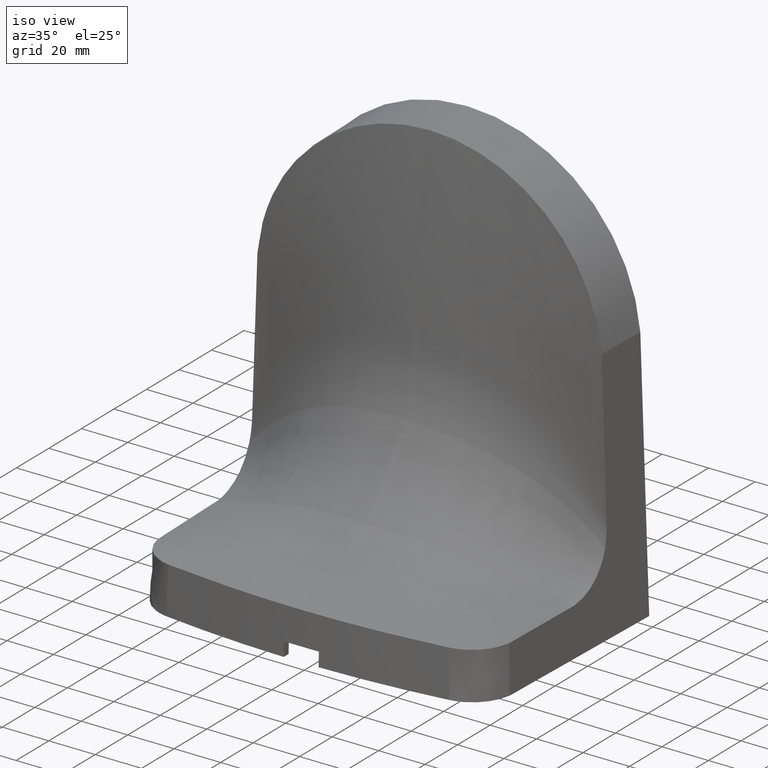
[diagram: clean part render]
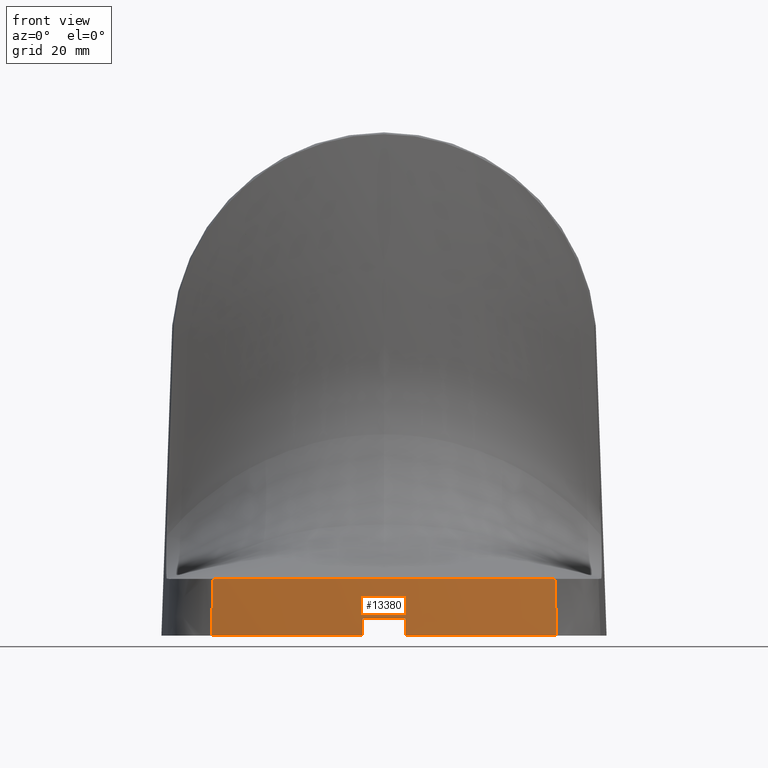
[diagram: tour spotlight — one face highlighted and labeled with its STEP entity id]
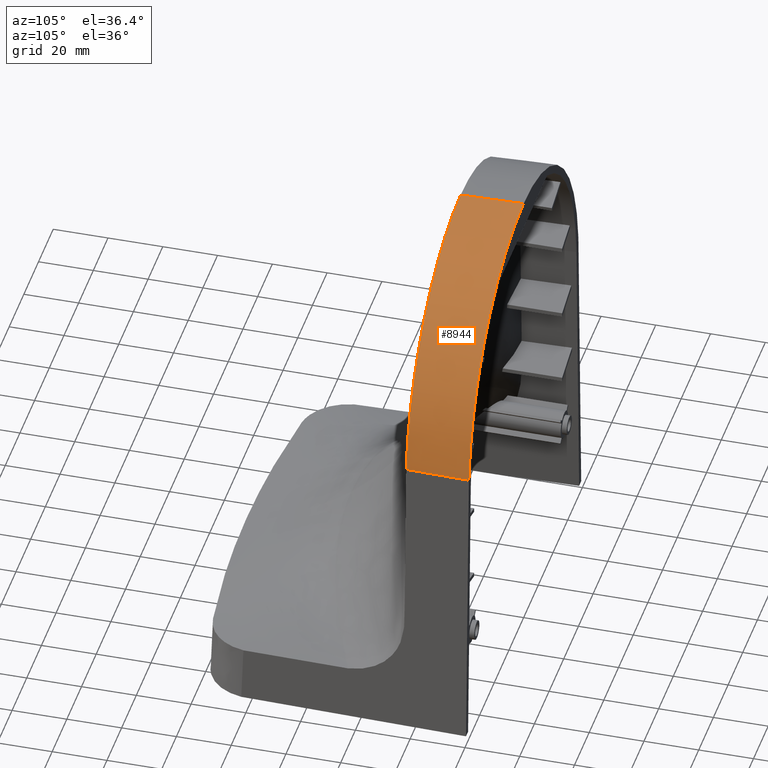
[diagram: tour spotlight — one face highlighted and labeled with its STEP entity id]
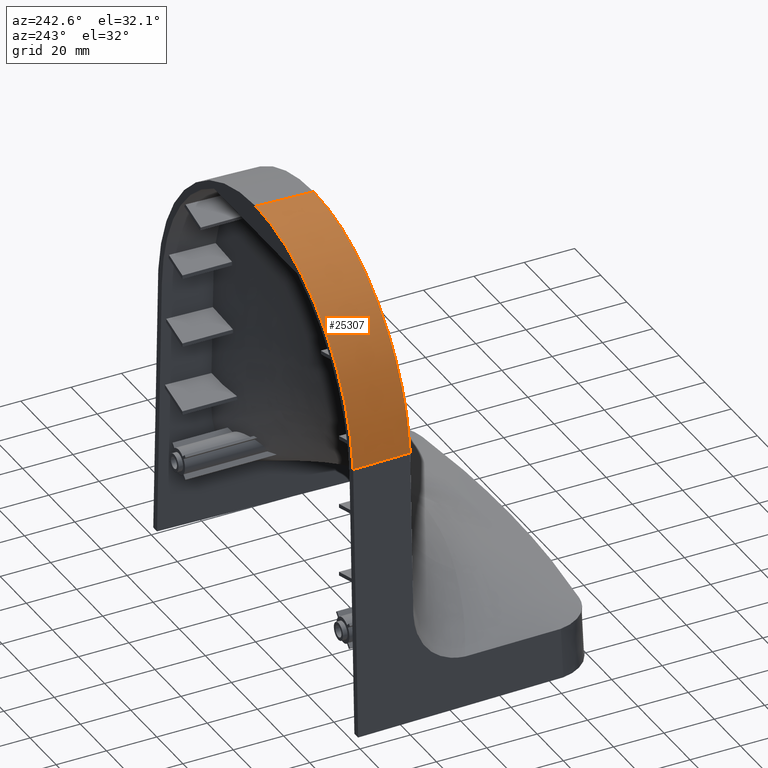
[diagram: tour spotlight — one face highlighted and labeled with its STEP entity id]
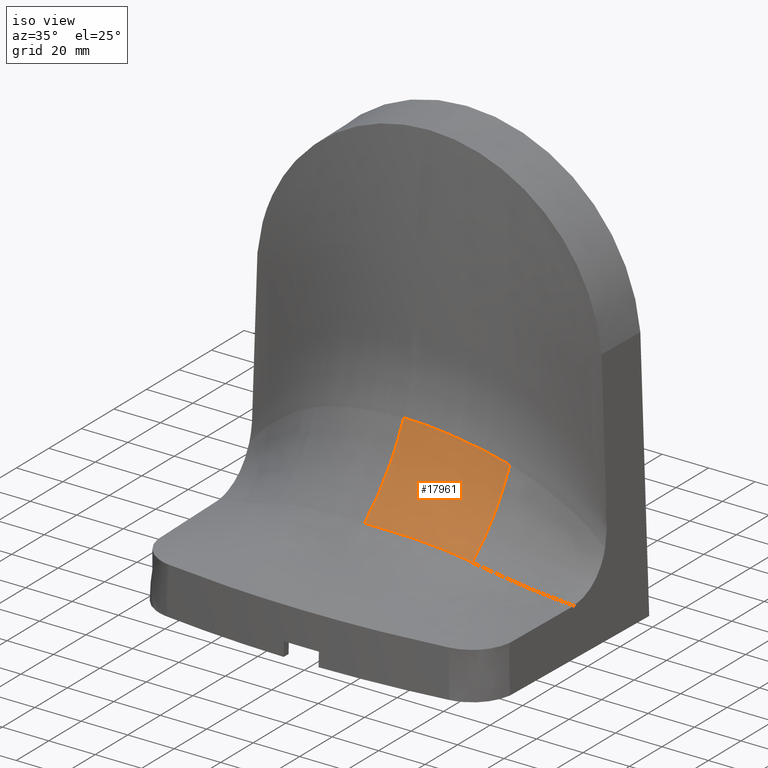
[diagram: tour spotlight — one face highlighted and labeled with its STEP entity id]
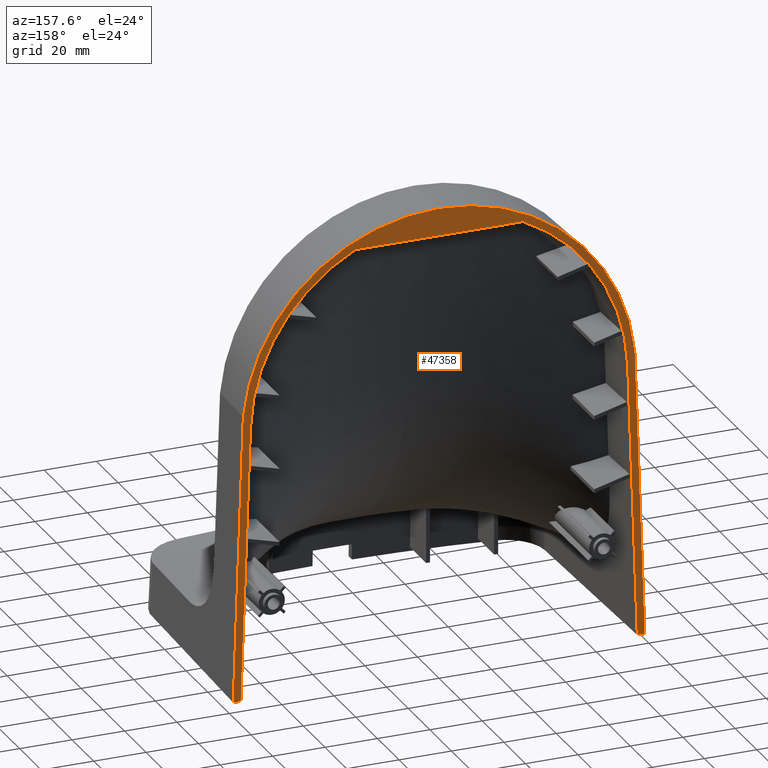
[diagram: tour spotlight — one face highlighted and labeled with its STEP entity id]
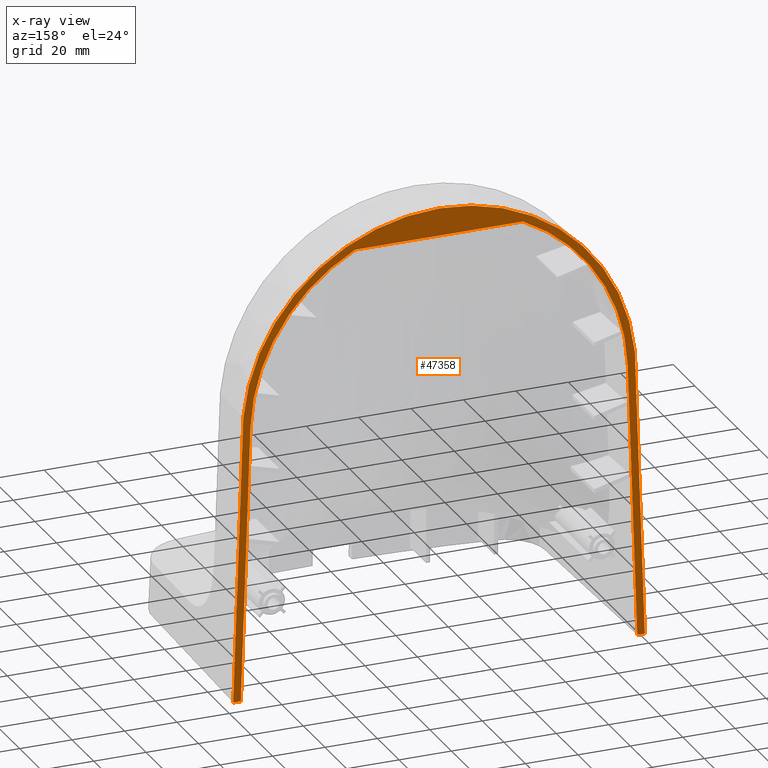
[diagram: x-ray of the same camera — body ghosted, this tour face saturated]
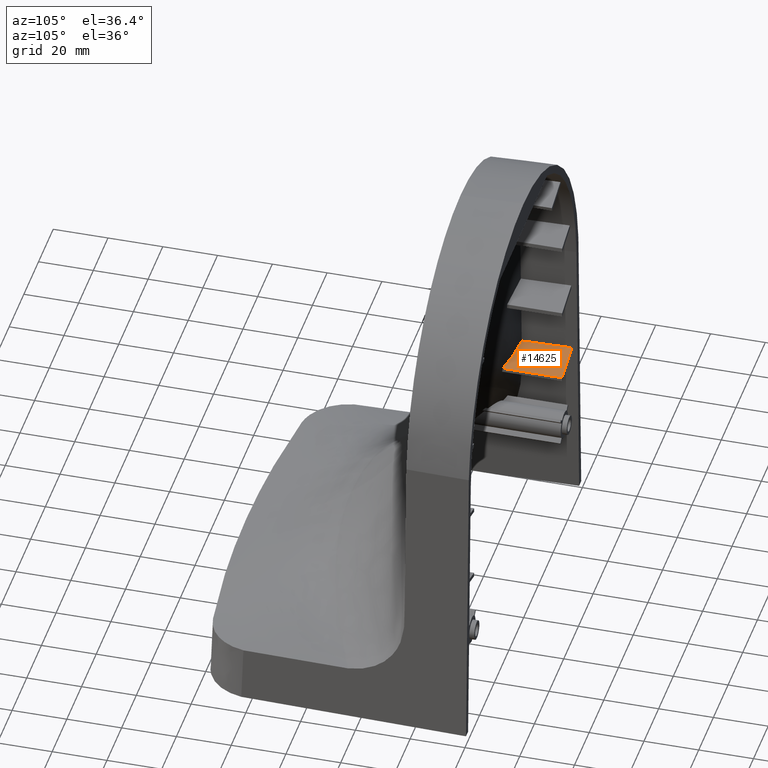
[diagram: tour spotlight — one face highlighted and labeled with its STEP entity id]
A machine part: a face-by-face anatomy tour. The part has 142 B-rep faces; the first image is the clean iso view, then the 6 largest visible faces are spotlighted one at a time (largest first), each with its STEP entity span.

Face 1 — front view, entity #13380. In plain terms, the highlighted conical surface has half-angle 2 deg.
Definition (entity closure, byte-faithful):
#221 = LINE ( 'NONE', #47440, #43218 ) ;
#403 = CARTESIAN_POINT ( 'NONE',  ( -60.95995261678829991, -97.87038769822579809, 0.000000000000000000 ) ) ;
#2825 = CARTESIAN_POINT ( 'NONE',  ( 60.25329385149890271, -97.26422360588341576, 19.99997466358019693 ) ) ;
#2958 = ORIENTED_EDGE ( 'NONE', *, *, #31203, .F. ) ;
#3682 = VERTEX_POINT ( 'NONE', #403 ) ;
#3900 = CARTESIAN_POINT ( 'NONE',  ( -19.72468415388675211, -100.9837160237571112, 20.00073828252684294 ) ) ;
#4009 = CARTESIAN_POINT ( 'NONE',  ( 20.14445170889858971, -101.3015846101651505, 20.00000000000000000 ) ) ;
#4072 = ORIENTED_EDGE ( 'NONE', *, *, #11642, .T. ) ;
#4708 = B_SPLINE_CURVE_WITH_KNOTS ( 'NONE', 3,
 ( #42739, #32878, #4009, #50126 ),
 .UNSPECIFIED., .F., .F.,
 ( 4, 4 ),
 ( 0.000000000000000000, 1.000000000000000000 ),
 .UNSPECIFIED. ) ;
#5835 = CARTESIAN_POINT ( 'NONE',  ( -60.25329385149890271, -97.26422360588341576, 19.99997466358019693 ) ) ;
#6856 = CARTESIAN_POINT ( 'NONE',  ( -7.500000000000000000, -101.7282187851913875, 6.000000000000000000 ) ) ;
#7390 = CARTESIAN_POINT ( 'NONE',  ( 60.95995261678829991, -97.87038769822579809, 0.000000000000000000 ) ) ;
#7703 = EDGE_LOOP ( 'NONE', ( #15852, #4072, #41795, #10500, #30736, #21625, #2958, #9623, #13707 ) ) ;
#8958 = EDGE_CURVE ( 'NONE', #22463, #28138, #14000, .T. ) ;
#9621 = DIRECTION ( 'NONE',  ( 1.000000000000000000, 0.000000000000000000, -7.295360978031786523E-17 ) ) ;
#9623 = ORIENTED_EDGE ( 'NONE', *, *, #53447, .F. ) ;
#9903 = VERTEX_POINT ( 'NONE', #52106 ) ;
#10340 = CARTESIAN_POINT ( 'NONE',  ( -7.500000000000000000, -101.9377722651649947, 0.000000000000000000 ) ) ;
#10500 = ORIENTED_EDGE ( 'NONE', *, *, #34557, .T. ) ;
#10701 = CONICAL_SURFACE ( 'NONE', #48636, 452.0000000000000000, 0.03490658503988566114 ) ;
#11193 = CARTESIAN_POINT ( 'NONE',  ( -60.72428089086646708, -97.66751476531206322, 6.666628508654348195 ) ) ;
#11330 = CARTESIAN_POINT ( 'NONE',  ( 60.72397334789777545, -97.66755676905982853, 6.666624421713695625 ) ) ;
#11416 = B_SPLINE_CURVE_WITH_KNOTS ( 'NONE', 3,
 ( #50878, #11330, #15577, #2825 ),
 .UNSPECIFIED., .F., .F.,
 ( 4, 4 ),
 ( 0.000000000000000000, 1.000000000000000000 ),
 .UNSPECIFIED. ) ;
#11435 = EDGE_CURVE ( 'NONE', #14084, #41963, #54540, .T. ) ;
#11642 = EDGE_CURVE ( 'NONE', #37328, #27619, #221, .T. ) ;
#12118 = CARTESIAN_POINT ( 'NONE',  ( -39.74533594350766208, -99.58047647630849042, 20.00126220372476027 ) ) ;
#12624 = DIRECTION ( 'NONE',  ( 1.000000000000000000, 0.000000000000000000, 0.000000000000000000 ) ) ;
#13248 = CARTESIAN_POINT ( 'NONE',  ( -55.04816981977593571, -97.96410930859322264, 20.00124811105575873 ) ) ;
#13380 = ADVANCED_FACE ( 'NONE', ( #25027 ), #10701, .T. ) ;
#13707 = ORIENTED_EDGE ( 'NONE', *, *, #8958, .F. ) ;
#14000 = LINE ( 'NONE', #35750, #19739 ) ;
#14081 = CARTESIAN_POINT ( 'NONE',  ( 7.500000000000000000, -101.7282187851913875, 6.000000000000000000 ) ) ;
#14084 = VERTEX_POINT ( 'NONE', #48157 ) ;
#14556 = DIRECTION ( 'NONE',  ( 0.000000000000000000, -0.03490430064655578729, -0.9993906592501126118 ) ) ;
#15577 = CARTESIAN_POINT ( 'NONE',  ( 60.48829111055109564, -97.46454263816777086, 13.33324884342739658 ) ) ;
#15852 = ORIENTED_EDGE ( 'NONE', *, *, #35572, .T. ) ;
#16292 = DIRECTION ( 'NONE',  ( 1.000000000000000000, 0.000000000000000000, 0.000000000000000000 ) ) ;
#16637 = CARTESIAN_POINT ( 'NONE',  ( -9.863317608593179742, -101.3019111910422367, 20.00033859842973172 ) ) ;
#18791 = CIRCLE ( 'NONE', #28698, 451.7904753830500226 ) ;
#19739 = VECTOR ( 'NONE', #14556, 1000.000000000000227 ) ;
#21625 = ORIENTED_EDGE ( 'NONE', *, *, #11435, .F. ) ;
#22463 = VERTEX_POINT ( 'NONE', #6856 ) ;
#25027 = FACE_OUTER_BOUND ( 'NONE', #7703, .T. ) ;
#25491 = VERTEX_POINT ( 'NONE', #7390 ) ;
#25943 = DIRECTION ( 'NONE',  ( 0.000000000000000000, -0.03490430064655578729, -0.9993906592501126118 ) ) ;
#26157 = CARTESIAN_POINT ( 'NONE',  ( 9.711198858952661196E-13, 350.0000000000000000, 0.000000000000000000 ) ) ;
#26625 =( BOUNDED_CURVE ( )  B_SPLINE_CURVE ( 3, ( #49920, #11193, #36080, #5835 ),
 .UNSPECIFIED., .F., .F. ) 
 B_SPLINE_CURVE_WITH_KNOTS ( ( 4, 4 ),
 ( 0.000000000000000000, 1.000000000000000000 ),
 .UNSPECIFIED. ) 
 CURVE ( )  GEOMETRIC_REPRESENTATION_ITEM ( )  RATIONAL_B_SPLINE_CURVE ( ( 0.9999999927008830225, 0.9999999926963566432, 0.9999999926918218263, 0.9999999926872785716 ) ) 
 REPRESENTATION_ITEM ( '' )  );
#27415 = EDGE_CURVE ( 'NONE', #27619, #25491, #30447, .T. ) ;
#27619 = VERTEX_POINT ( 'NONE', #38338 ) ;
#28138 = VERTEX_POINT ( 'NONE', #10340 ) ;
#28612 = CIRCLE ( 'NONE', #53007, 452.0000000000000000 ) ;
#28698 = AXIS2_PLACEMENT_3D ( 'NONE', #40413, #48907, #9621 ) ;
#29000 = DIRECTION ( 'NONE',  ( 0.000000000000000000, 0.000000000000000000, -1.000000000000000000 ) ) ;
#30447 = CIRCLE ( 'NONE', #50341, 452.0000000000000000 ) ;
#30736 = ORIENTED_EDGE ( 'NONE', *, *, #34127, .T. ) ;
#31203 = EDGE_CURVE ( 'NONE', #3682, #14084, #26625, .T. ) ;
#32878 = CARTESIAN_POINT ( 'NONE',  ( 40.28879555473863405, -99.95081082163490294, 20.00000000000000000 ) ) ;
#33811 = CARTESIAN_POINT ( 'NONE',  ( -9.711198858952661196E-13, 350.0000000000000000, 0.000000000000000000 ) ) ;
#34127 = EDGE_CURVE ( 'NONE', #9903, #41963, #4708, .T. ) ;
#34557 = EDGE_CURVE ( 'NONE', #25491, #9903, #11416, .T. ) ;
#34954 = DIRECTION ( 'NONE',  ( 0.000000000000000000, 0.000000000000000000, 1.000000000000000000 ) ) ;
#35572 = EDGE_CURVE ( 'NONE', #22463, #37328, #18791, .T. ) ;
#35750 = CARTESIAN_POINT ( 'NONE',  ( -7.500000000000000000, -101.8329955285204420, 3.000000000116731069 ) ) ;
#36080 = CARTESIAN_POINT ( 'NONE',  ( -60.48859961017011244, -97.46450093020644090, 13.33325301590960166 ) ) ;
#37328 = VERTEX_POINT ( 'NONE', #14081 ) ;
#38338 = CARTESIAN_POINT ( 'NONE',  ( 7.500000000000000000, -101.9377722651649947, 0.000000000000000000 ) ) ;
#40413 = CARTESIAN_POINT ( 'NONE',  ( 9.722602404197200421E-13, 350.0000000000000000, 6.000000000000000000 ) ) ;
#41795 = ORIENTED_EDGE ( 'NONE', *, *, #27415, .T. ) ;
#41963 = VERTEX_POINT ( 'NONE', #50816 ) ;
#42282 = DIRECTION ( 'NONE',  ( 0.000000000000000000, 0.000000000000000000, -1.000000000000000000 ) ) ;
#42739 = CARTESIAN_POINT ( 'NONE',  ( 60.25329385149890271, -97.26422360588341576, 19.99997466358019693 ) ) ;
#43218 = VECTOR ( 'NONE', #25943, 1000.000000000000227 ) ;
#47155 = CARTESIAN_POINT ( 'NONE',  ( -34.71480976205300806, -99.99548790362528905, 20.00116971636567342 ) ) ;
#47375 = DIRECTION ( 'NONE',  ( -1.000000000000000000, 0.000000000000000000, 0.000000000000000000 ) ) ;
#47385 = CARTESIAN_POINT ( 'NONE',  ( 9.711198858952661196E-13, 350.0000000000000000, 0.000000000000000000 ) ) ;
#47440 = CARTESIAN_POINT ( 'NONE',  ( 7.500000000000000000, -101.8329955285204420, 3.000000000116731069 ) ) ;
#48157 = CARTESIAN_POINT ( 'NONE',  ( -60.25329385149890271, -97.26422360588341576, 19.99997466358019693 ) ) ;
#48636 = AXIS2_PLACEMENT_3D ( 'NONE', #26157, #42282, #16292 ) ;
#48907 = DIRECTION ( 'NONE',  ( 7.295360978031788988E-17, 0.000000000000000000, 1.000000000000000000 ) ) ;
#49920 = CARTESIAN_POINT ( 'NONE',  ( -60.95995261678829991, -97.87038769822579809, 0.000000000000000000 ) ) ;
#50126 = CARTESIAN_POINT ( 'NONE',  ( 0.000000000000000000, -101.3015846101649942, 19.99999999999954881 ) ) ;
#50341 = AXIS2_PLACEMENT_3D ( 'NONE', #47385, #34954, #12624 ) ;
#50816 = CARTESIAN_POINT ( 'NONE',  ( 0.000000000000000000, -101.3015846101649942, 19.99999999999954881 ) ) ;
#50878 = CARTESIAN_POINT ( 'NONE',  ( 60.95995261678829991, -97.87038769822579809, 0.000000000000000000 ) ) ;
#51407 = CARTESIAN_POINT ( 'NONE',  ( 0.000000000000000000, -101.3015846101649942, 19.99999999999954881 ) ) ;
#51688 = CARTESIAN_POINT ( 'NONE',  ( -49.91176401791380357, -98.56473986795751330, 20.00131071822856299 ) ) ;
#52106 = CARTESIAN_POINT ( 'NONE',  ( 60.25329385149890271, -97.26422360588341576, 19.99997466358019693 ) ) ;
#53007 = AXIS2_PLACEMENT_3D ( 'NONE', #33811, #29000, #47375 ) ;
#53221 = CARTESIAN_POINT ( 'NONE',  ( -60.25329385149890271, -97.26422360588341576, 19.99997466358019693 ) ) ;
#53447 = EDGE_CURVE ( 'NONE', #28138, #3682, #28612, .T. ) ;
#54540 = B_SPLINE_CURVE_WITH_KNOTS ( 'NONE', 3,
 ( #53221, #13248, #51688, #12118, #47155, #3900, #16637, #51407 ),
 .UNSPECIFIED., .F., .F.,
 ( 4, 2, 2, 4 ),
 ( 0.000000000000000000, 0.2500000000000001110, 0.5000000000000002220, 1.000000000000000000 ),
 .UNSPECIFIED. ) ;

Face 2 — auxiliary view, entity #8944. In plain terms, the highlighted conical surface has half-angle 1.5 deg.
Definition (entity closure, byte-faithful):
#373 = CARTESIAN_POINT ( 'NONE',  ( 43.23575321819595985, -23.00048361347755943, 163.1070725932615062 ) ) ;
#2134 = ORIENTED_EDGE ( 'NONE', *, *, #39725, .F. ) ;
#3484 = CARTESIAN_POINT ( 'NONE',  ( 71.32565619558168635, -23.00244189793587779, 123.9843645089801640 ) ) ;
#4257 = EDGE_CURVE ( 'NONE', #11759, #13981, #47794, .T. ) ;
#4309 = CARTESIAN_POINT ( 'NONE',  ( 23.86902024210680651, -23.00000000002642508, 172.9990663925199499 ) ) ;
#4808 = EDGE_CURVE ( 'NONE', #29882, #11759, #33360, .T. ) ;
#5502 = CARTESIAN_POINT ( 'NONE',  ( 74.47597193861523124, -7.666515893177463070, 109.4467044357807453 ) ) ;
#6018 = CARTESIAN_POINT ( 'NONE',  ( 47.58255545770396822, -23.00032412130770609, 159.7577387103325464 ) ) ;
#7915 = CARTESIAN_POINT ( 'NONE',  ( 1.387778780781445991E-14, 0.000000000000000000, 102.5000000000000000 ) ) ;
#8295 = CARTESIAN_POINT ( 'NONE',  ( 74.07528795069339367, -22.99954979039394942, 109.4208379550731962 ) ) ;
#8944 = ADVANCED_FACE ( 'NONE', ( #39719 ), #42274, .T. ) ;
#9313 = CARTESIAN_POINT ( 'NONE',  ( 1.387778780781445991E-14, 0.000000000000000000, 177.5000000000000000 ) ) ;
#11759 = VERTEX_POINT ( 'NONE', #39245 ) ;
#12261 = CARTESIAN_POINT ( 'NONE',  ( 65.63713245175389943, -23.00072505218619767, 137.7213820642276119 ) ) ;
#12589 = VERTEX_POINT ( 'NONE', #38114 ) ;
#12812 = CARTESIAN_POINT ( 'NONE',  ( 4.065803764812553567, -23.00000000003306866, 176.8224857898312905 ) ) ;
#13317 = VERTEX_POINT ( 'NONE', #25312 ) ;
#13542 = AXIS2_PLACEMENT_3D ( 'NONE', #7915, #16406, #38440 ) ;
#13726 = DIRECTION ( 'NONE',  ( 0.000000000000000000, 0.000000000000000000, 1.000000000000000000 ) ) ;
#13981 = VERTEX_POINT ( 'NONE', #47875 ) ;
#14516 = CARTESIAN_POINT ( 'NONE',  ( 49.65723019723104414, -23.00003359052855956, 157.9681210772299949 ) ) ;
#16212 = CARTESIAN_POINT ( 'NONE',  ( 12.13200512705541279, -23.00000000003150546, 175.9327633256657748 ) ) ;
#16406 = DIRECTION ( 'NONE',  ( 0.000000000000000000, 1.000000000000000000, 0.000000000000000000 ) ) ;
#17036 = EDGE_CURVE ( 'NONE', #37185, #13317, #30892, .T. ) ;
#18619 = B_SPLINE_CURVE_WITH_KNOTS ( 'NONE', 3,
 ( #8295, #32907, #38533, #3484, #21011, #42209, #12261, #29480, #50155, #38255 ),
 .UNSPECIFIED., .F., .F.,
 ( 4, 2, 2, 2, 4 ),
 ( 0.000000000000000000, 0.2500000000000000555, 0.5000000000000001110, 0.7500000000000002220, 1.000000000000000000 ),
 .UNSPECIFIED. ) ;
#18743 = CARTESIAN_POINT ( 'NONE',  ( 55.48605840960630786, -23.00009845205809711, 152.1391271591209602 ) ) ;
#19023 = CARTESIAN_POINT ( 'NONE',  ( 36.19696800715550467, -23.00016004957954152, 167.5130984218383787 ) ) ;
#20998 = CARTESIAN_POINT ( 'NONE',  ( 16.10562943926966639, -23.00000000003017320, 175.1636084501185167 ) ) ;
#21011 = CARTESIAN_POINT ( 'NONE',  ( 70.16235459508914118, -23.00220399812483407, 127.5236182532729572 ) ) ;
#21562 = CARTESIAN_POINT ( 'NONE',  ( 1.355559533698856622, -23.00000000003321432, 176.8977238036908091 ) ) ;
#22175 = CARTESIAN_POINT ( 'NONE',  ( 74.67620507080019365, -5.977045331083648973E-16, 109.4616374671337269 ) ) ;
#22922 = EDGE_CURVE ( 'NONE', #12589, #29882, #42155, .T. ) ;
#24081 = CARTESIAN_POINT ( 'NONE',  ( 33.76209854887507333, -23.00001503848226392, 168.8102158487522786 ) ) ;
#25312 = CARTESIAN_POINT ( 'NONE',  ( 31.28532095397624246, -23.00000000000000000, 170.0000000001345200 ) ) ;
#25505 = CARTESIAN_POINT ( 'NONE',  ( 31.28532095397624246, -23.00000000000000000, 170.0000000001345200 ) ) ;
#26421 = EDGE_LOOP ( 'NONE', ( #30688, #45598, #36114, #2134, #54567, #30823 ) ) ;
#27246 = CARTESIAN_POINT ( 'NONE',  ( 74.27573897290450589, -15.33303178142911705, 109.4317666425568518 ) ) ;
#29480 = CARTESIAN_POINT ( 'NONE',  ( 61.79748318668229246, -23.00014282289241052, 144.0942129556169959 ) ) ;
#29882 = VERTEX_POINT ( 'NONE', #9313 ) ;
#30033 = CARTESIAN_POINT ( 'NONE',  ( 27.63376104967644764, -23.00002538255287377, 171.6139635768498408 ) ) ;
#30688 = ORIENTED_EDGE ( 'NONE', *, *, #22922, .F. ) ;
#30823 = ORIENTED_EDGE ( 'NONE', *, *, #4808, .F. ) ;
#30892 = B_SPLINE_CURVE_WITH_KNOTS ( 'NONE', 3,
 ( #44736, #18743, #35989, #14516, #6018, #373, #54071, #36264, #19023, #24081, #50102, #53512 ),
 .UNSPECIFIED., .F., .F.,
 ( 4, 2, 2, 2, 2, 4 ),
 ( 0.000000000000000000, 0.008219656119923878651, 0.01643931223984775730, 0.02465896835977163595, 0.02876879641973358048, 0.03287862447969552848 ),
 .UNSPECIFIED. ) ;
#31493 = CARTESIAN_POINT ( 'NONE',  ( 74.07528795069339367, -22.99954979039394942, 109.4208379550731962 ) ) ;
#32907 = CARTESIAN_POINT ( 'NONE',  ( 73.73003650056249114, -23.00019028916993946, 113.1100404092891551 ) ) ;
#33360 = CIRCLE ( 'NONE', #13542, 75.00000000000000000 ) ;
#34571 = CARTESIAN_POINT ( 'NONE',  ( 20.02220783603732812, -23.00000000002846789, 174.1841606685379134 ) ) ;
#35989 = CARTESIAN_POINT ( 'NONE',  ( 53.60897000106226784, -22.99990727939973922, 154.1588017115777518 ) ) ;
#36028 = CARTESIAN_POINT ( 'NONE',  ( 1.387778780781445991E-14, 0.000000000000000000, 102.5000000000000000 ) ) ;
#36114 = ORIENTED_EDGE ( 'NONE', *, *, #17036, .F. ) ;
#36264 = CARTESIAN_POINT ( 'NONE',  ( 37.40192930306995578, -23.00029095502565823, 166.8276315999075337 ) ) ;
#37185 = VERTEX_POINT ( 'NONE', #46313 ) ;
#37806 = AXIS2_PLACEMENT_3D ( 'NONE', #36028, #52722, #13726 ) ;
#37924 = CARTESIAN_POINT ( 'NONE',  ( 1.387778780781445991E-14, 0.000000000000000000, 177.5000000000000000 ) ) ;
#38114 = CARTESIAN_POINT ( 'NONE',  ( 0.000000000000000000, -23.00000000000000000, 176.8977238039084909 ) ) ;
#38255 = CARTESIAN_POINT ( 'NONE',  ( 57.26055392984910242, -23.00006951372355246, 150.0000000000000000 ) ) ;
#38440 = DIRECTION ( 'NONE',  ( 0.000000000000000000, 0.000000000000000000, 1.000000000000000000 ) ) ;
#38533 = CARTESIAN_POINT ( 'NONE',  ( 73.10978734033216142, -23.00256090614766435, 116.7775175101866125 ) ) ;
#39245 = CARTESIAN_POINT ( 'NONE',  ( 74.67620507080019365, -5.977045331083648973E-16, 109.4616374671337269 ) ) ;
#39719 = FACE_OUTER_BOUND ( 'NONE', #26421, .T. ) ;
#39725 = EDGE_CURVE ( 'NONE', #13981, #37185, #18619, .T. ) ;
#42155 = LINE ( 'NONE', #37924, #42321 ) ;
#42209 = CARTESIAN_POINT ( 'NONE',  ( 67.31707424120924088, -23.00125553872267403, 134.3918107460218039 ) ) ;
#42274 = CONICAL_SURFACE ( 'NONE', #37806, 75.00000000000000000, 0.02617993877991574986 ) ;
#42321 = VECTOR ( 'NONE', #50655, 1000.000000000000114 ) ;
#43326 = CARTESIAN_POINT ( 'NONE',  ( 30.07969411054695996, -23.00000000002229683, 170.5587914480568941 ) ) ;
#44736 = CARTESIAN_POINT ( 'NONE',  ( 57.26055392984910242, -23.00006951372355246, 150.0000000000000000 ) ) ;
#45138 = EDGE_CURVE ( 'NONE', #13317, #12589, #50309, .T. ) ;
#45598 = ORIENTED_EDGE ( 'NONE', *, *, #45138, .F. ) ;
#46313 = CARTESIAN_POINT ( 'NONE',  ( 57.26055392984910242, -23.00006951372355246, 150.0000000000000000 ) ) ;
#47283 = CARTESIAN_POINT ( 'NONE',  ( 0.000000000000000000, -23.00000000000000000, 176.8977238039084909 ) ) ;
#47794 = B_SPLINE_CURVE_WITH_KNOTS ( 'NONE', 3,
 ( #22175, #5502, #27246, #31493 ),
 .UNSPECIFIED., .F., .F.,
 ( 4, 4 ),
 ( 1.236447576014035112E-18, 0.02300743445469166995 ),
 .UNSPECIFIED. ) ;
#47875 = CARTESIAN_POINT ( 'NONE',  ( 74.07528795069339367, -22.99954979039394942, 109.4208379550731962 ) ) ;
#50102 = CARTESIAN_POINT ( 'NONE',  ( 32.53062491988413285, -23.00000000000080647, 169.4228187518933169 ) ) ;
#50155 = CARTESIAN_POINT ( 'NONE',  ( 59.63631324114804499, -23.00002824011976088, 147.1361434784965354 ) ) ;
#50309 = B_SPLINE_CURVE_WITH_KNOTS ( 'NONE', 3,
 ( #25505, #43326, #30033, #4309, #34571, #20998, #16212, #50695, #12812, #21562, #47283 ),
 .UNSPECIFIED., .F., .F.,
 ( 4, 1, 1, 1, 1, 1, 1, 1, 4 ),
 ( 0.000000000000000000, 0.1249999999999999722, 0.2499999999999999445, 0.3749999999999998890, 0.4999999999999998890, 0.6250000000000001110, 0.7500000000000001110, 0.8750000000000000000, 1.000000000000000000 ),
 .UNSPECIFIED. ) ;
#50655 = DIRECTION ( 'NONE',  ( 0.000000000000000000, 0.9996573249755572599, 0.02617694830787395746 ) ) ;
#50695 = CARTESIAN_POINT ( 'NONE',  ( 8.114381151532123582, -23.00000000003246470, 176.4871981529715015 ) ) ;
#52722 = DIRECTION ( 'NONE',  ( 0.000000000000000000, 1.000000000000000000, 0.000000000000000000 ) ) ;
#53512 = CARTESIAN_POINT ( 'NONE',  ( 31.28532095397624246, -23.00000000000000000, 170.0000000001345200 ) ) ;
#54071 = CARTESIAN_POINT ( 'NONE',  ( 40.96364529813808275, -23.00049251971633169, 164.6668116383640665 ) ) ;
#54567 = ORIENTED_EDGE ( 'NONE', *, *, #4257, .F. ) ;

Face 3 — auxiliary view, entity #25307. In plain terms, the highlighted conical surface has half-angle 1.5 deg.
Definition (entity closure, byte-faithful):
#112 = VERTEX_POINT ( 'NONE', #15649 ) ;
#2148 = B_SPLINE_CURVE_WITH_KNOTS ( 'NONE', 3,
 ( #35844, #44321, #49404, #49690, #27907, #27629 ),
 .UNSPECIFIED., .F., .F.,
 ( 4, 2, 4 ),
 ( 0.000000000000000000, 0.5000000000000001110, 1.000000000000000000 ),
 .UNSPECIFIED. ) ;
#2470 = AXIS2_PLACEMENT_3D ( 'NONE', #42086, #46608, #46058 ) ;
#3188 = CARTESIAN_POINT ( 'NONE',  ( -73.10678250090303720, -22.99990688261038230, 116.7908885178116947 ) ) ;
#3666 = CARTESIAN_POINT ( 'NONE',  ( -41.02322949980752753, -23.00002317124008755, 164.8094289627906903 ) ) ;
#3832 = ORIENTED_EDGE ( 'NONE', *, *, #22922, .T. ) ;
#4683 = ORIENTED_EDGE ( 'NONE', *, *, #18973, .T. ) ;
#5516 = EDGE_CURVE ( 'NONE', #112, #16916, #8033, .T. ) ;
#8033 = B_SPLINE_CURVE_WITH_KNOTS ( 'NONE', 3,
 ( #33644, #46635, #25144, #3666, #25710, #42961 ),
 .UNSPECIFIED., .F., .F.,
 ( 4, 2, 4 ),
 ( 0.000000000000000000, 0.5000000000000000000, 1.000000000000000000 ),
 .UNSPECIFIED. ) ;
#8857 = CARTESIAN_POINT ( 'NONE',  ( -74.67620507080009418, 0.000000000000000000, 109.4616374671340111 ) ) ;
#9313 = CARTESIAN_POINT ( 'NONE',  ( 1.387778780781445991E-14, 0.000000000000000000, 177.5000000000000000 ) ) ;
#12589 = VERTEX_POINT ( 'NONE', #38114 ) ;
#13395 = CARTESIAN_POINT ( 'NONE',  ( -74.27573322740788342, -15.33324957779794850, 109.4317678533975879 ) ) ;
#13617 = EDGE_CURVE ( 'NONE', #31705, #22550, #30924, .T. ) ;
#15649 = CARTESIAN_POINT ( 'NONE',  ( -57.26055392984910242, -23.00006951372355246, 150.0000000000000000 ) ) ;
#15978 = CARTESIAN_POINT ( 'NONE',  ( -74.07565330486880839, -22.99987845167859746, 109.4168384960075997 ) ) ;
#16486 = CARTESIAN_POINT ( 'NONE',  ( -65.62906331584476050, -23.00000446127828724, 137.7371509830020386 ) ) ;
#16525 = DIRECTION ( 'NONE',  ( 0.000000000000000000, 0.000000000000000000, 1.000000000000000000 ) ) ;
#16916 = VERTEX_POINT ( 'NONE', #31187 ) ;
#18973 = EDGE_CURVE ( 'NONE', #31705, #112, #20066, .T. ) ;
#19933 = DIRECTION ( 'NONE',  ( 0.000000000000000000, 1.000000000000000000, 0.000000000000000000 ) ) ;
#20066 = B_SPLINE_CURVE_WITH_KNOTS ( 'NONE', 3,
 ( #24668, #32895, #3188, #54927, #20433, #33448, #16486, #50143, #41649, #25225 ),
 .UNSPECIFIED., .F., .F.,
 ( 4, 2, 2, 2, 4 ),
 ( 0.000000000000000000, 0.2500000000000000555, 0.5000000000000001110, 0.7500000000000002220, 1.000000000000000000 ),
 .UNSPECIFIED. ) ;
#20433 = CARTESIAN_POINT ( 'NONE',  ( -70.15408189433642860, -22.99995567194433477, 127.5446749879328365 ) ) ;
#22550 = VERTEX_POINT ( 'NONE', #49272 ) ;
#22615 = ORIENTED_EDGE ( 'NONE', *, *, #13617, .F. ) ;
#22922 = EDGE_CURVE ( 'NONE', #12589, #29882, #42155, .T. ) ;
#24668 = CARTESIAN_POINT ( 'NONE',  ( -74.07565330486880839, -22.99987845167859746, 109.4168384960075997 ) ) ;
#24984 = CARTESIAN_POINT ( 'NONE',  ( 1.387778780781445991E-14, 0.000000000000000000, 102.5000000000000000 ) ) ;
#25144 = CARTESIAN_POINT ( 'NONE',  ( -49.75326502901268810, -23.00004634248182001, 158.0876139525037445 ) ) ;
#25225 = CARTESIAN_POINT ( 'NONE',  ( -57.26055392984910242, -23.00006951372355246, 150.0000000000000000 ) ) ;
#25307 = ADVANCED_FACE ( 'NONE', ( #50860 ), #40556, .T. ) ;
#25710 = CARTESIAN_POINT ( 'NONE',  ( -36.28355834478301034, -23.00001158561921955, 167.6833854290171075 ) ) ;
#27209 = CARTESIAN_POINT ( 'NONE',  ( -74.07565330486880839, -22.99987845167859746, 109.4168384960075997 ) ) ;
#27316 = EDGE_CURVE ( 'NONE', #16916, #12589, #2148, .T. ) ;
#27629 = CARTESIAN_POINT ( 'NONE',  ( 0.000000000000000000, -23.00000000000000000, 176.8977238039084909 ) ) ;
#27907 = CARTESIAN_POINT ( 'NONE',  ( -5.381588014554445465, -23.00000000000000000, 176.8977238039086899 ) ) ;
#28011 = ORIENTED_EDGE ( 'NONE', *, *, #5516, .T. ) ;
#29882 = VERTEX_POINT ( 'NONE', #9313 ) ;
#30617 = CARTESIAN_POINT ( 'NONE',  ( -74.47596914910401722, -7.666624788898976028, 109.4467026602656574 ) ) ;
#30924 = B_SPLINE_CURVE_WITH_KNOTS ( 'NONE', 3,
 ( #27209, #13395, #30617, #8857 ),
 .UNSPECIFIED., .F., .F.,
 ( 4, 4 ),
 ( 0.000000000000000000, 1.000000000000000000 ),
 .UNSPECIFIED. ) ;
#31187 = CARTESIAN_POINT ( 'NONE',  ( -31.28532095397624246, -23.00000000000000000, 170.0000000001345200 ) ) ;
#31705 = VERTEX_POINT ( 'NONE', #15978 ) ;
#32895 = CARTESIAN_POINT ( 'NONE',  ( -73.73000706887265210, -22.99989061949906954, 113.1168386880393086 ) ) ;
#33448 = CARTESIAN_POINT ( 'NONE',  ( -67.30919540720154259, -22.99998819816697093, 134.4108608249636347 ) ) ;
#33644 = CARTESIAN_POINT ( 'NONE',  ( -57.26055392984910242, -23.00006951372355246, 150.0000000000000000 ) ) ;
#35844 = CARTESIAN_POINT ( 'NONE',  ( -31.28532095397624246, -23.00000000000000000, 170.0000000001345200 ) ) ;
#37924 = CARTESIAN_POINT ( 'NONE',  ( 1.387778780781445991E-14, 0.000000000000000000, 177.5000000000000000 ) ) ;
#38114 = CARTESIAN_POINT ( 'NONE',  ( 0.000000000000000000, -23.00000000000000000, 176.8977238039084909 ) ) ;
#38505 = AXIS2_PLACEMENT_3D ( 'NONE', #24984, #19933, #16525 ) ;
#39420 = ORIENTED_EDGE ( 'NONE', *, *, #48019, .F. ) ;
#40556 = CONICAL_SURFACE ( 'NONE', #2470, 75.00000000000000000, 0.02617993877991574986 ) ;
#41649 = CARTESIAN_POINT ( 'NONE',  ( -59.63314313478847595, -23.00005325061223616, 147.1398791486431321 ) ) ;
#42086 = CARTESIAN_POINT ( 'NONE',  ( 1.387778780781445991E-14, 0.000000000000000000, 102.5000000000000000 ) ) ;
#42155 = LINE ( 'NONE', #37924, #42321 ) ;
#42321 = VECTOR ( 'NONE', #50655, 1000.000000000000114 ) ;
#42961 = CARTESIAN_POINT ( 'NONE',  ( -31.28532095397624246, -23.00000000000000000, 170.0000000001345200 ) ) ;
#44313 = ORIENTED_EDGE ( 'NONE', *, *, #27316, .T. ) ;
#44321 = CARTESIAN_POINT ( 'NONE',  ( -26.40268244823136001, -23.00000000000000355, 172.2630357445756033 ) ) ;
#46058 = DIRECTION ( 'NONE',  ( 0.000000000000000000, 0.000000000000000000, 1.000000000000000000 ) ) ;
#46608 = DIRECTION ( 'NONE',  ( 0.000000000000000000, 1.000000000000000000, 0.000000000000000000 ) ) ;
#46635 = CARTESIAN_POINT ( 'NONE',  ( -53.74327590965734913, -23.00005792810267735, 154.2400275859423573 ) ) ;
#48019 = EDGE_CURVE ( 'NONE', #22550, #29882, #49375, .T. ) ;
#49272 = CARTESIAN_POINT ( 'NONE',  ( -74.67620507080009418, 0.000000000000000000, 109.4616374671340111 ) ) ;
#49375 = CIRCLE ( 'NONE', #38505, 75.00000000000000000 ) ;
#49404 = CARTESIAN_POINT ( 'NONE',  ( -21.27371859134594345, -23.00000000000000355, 173.9941374803368319 ) ) ;
#49690 = CARTESIAN_POINT ( 'NONE',  ( -10.76297756892645019, -23.00000000000000000, 176.3115242398628482 ) ) ;
#50143 = CARTESIAN_POINT ( 'NONE',  ( -61.79102107077207506, -23.00003698750091985, 144.1016868577708578 ) ) ;
#50186 = EDGE_LOOP ( 'NONE', ( #44313, #3832, #39420, #22615, #4683, #28011 ) ) ;
#50655 = DIRECTION ( 'NONE',  ( 0.000000000000000000, 0.9996573249755572599, 0.02617694830787395746 ) ) ;
#50860 = FACE_OUTER_BOUND ( 'NONE', #50186, .T. ) ;
#54927 = CARTESIAN_POINT ( 'NONE',  ( -71.31881240923543430, -22.99993940883301136, 124.0048369458066446 ) ) ;

Face 4 — iso view, entity #17961. In plain terms, the highlighted face is a freeform B-spline surface patch.
Definition (entity closure, byte-faithful):
#53 = VERTEX_POINT ( 'NONE', #32604 ) ;
#135 = CARTESIAN_POINT ( 'NONE',  ( 26.65102799041324744, -31.46831999473410235, 90.28428192843040279 ) ) ;
#284 = CARTESIAN_POINT ( 'NONE',  ( 8.181111410450451871, -38.66492154647328761, 70.67722130354444232 ) ) ;
#1394 = CARTESIAN_POINT ( 'NONE',  ( 3.700405720624320363E-09, -38.85218891560035104, 70.99999281831649967 ) ) ;
#2223 = CARTESIAN_POINT ( 'NONE',  ( 37.56821298341818505, -32.85658268173285990, 34.94027777670104484 ) ) ;
#2497 = CARTESIAN_POINT ( 'NONE',  ( 43.11367020886875423, -30.09179279057955370, 77.76529936091489503 ) ) ;
#2559 = ORIENTED_EDGE ( 'NONE', *, *, #35121, .F. ) ;
#2772 = CARTESIAN_POINT ( 'NONE',  ( 28.53685782154732564, -34.44274920110739657, 38.43476662721549530 ) ) ;
#3217 = CARTESIAN_POINT ( 'NONE',  ( 37.48369316299509535, -58.59361614066840218, 34.70995261066704529 ) ) ;
#3499 = CARTESIAN_POINT ( 'NONE',  ( 21.85764964920017306, -61.55656967937009227, 38.02433128469943568 ) ) ;
#3815 = CARTESIAN_POINT ( 'NONE',  ( 44.43640153252279390, -75.00000488543830102, 26.39336352752664894 ) ) ;
#4734 = VERTEX_POINT ( 'NONE', #20354 ) ;
#4953 = CARTESIAN_POINT ( 'NONE',  ( -34.98498563821239316, -30.92315312434990204, 84.37751807833619466 ) ) ;
#6473 = CARTESIAN_POINT ( 'NONE',  ( -42.92617756138439944, -76.08264486111869473, 26.40075683364860382 ) ) ;
#6751 = CARTESIAN_POINT ( 'NONE',  ( 4.104243931694978365, -36.48429613288679718, 43.18675894221627232 ) ) ;
#7025 = CARTESIAN_POINT ( 'NONE',  ( 18.11089750758794992, -86.97791276141450112, 25.28096168684904654 ) ) ;
#7302 = CARTESIAN_POINT ( 'NONE',  ( 33.86318672080128067, -33.55631587428347018, 36.20416066180359849 ) ) ;
#7650 = CARTESIAN_POINT ( 'NONE',  ( 37.00342473653058306, -34.62872830313635575, 63.91488330549481844 ) ) ;
#7747 = CARTESIAN_POINT ( 'NONE',  ( 29.79809188434357026, -60.24114474267143038, 36.66277576017702700 ) ) ;
#8310 = CARTESIAN_POINT ( 'NONE',  ( 32.39372160926799182, -59.72919769263044998, 36.08257547609827043 ) ) ;
#8348 = CARTESIAN_POINT ( 'NONE',  ( 25.58823422245761137, -34.87871456133522940, 39.39255167555760551 ) ) ;
#9752 = CARTESIAN_POINT ( 'NONE',  ( -42.18444728324990223, -30.20962682478180028, 78.45500000443729505 ) ) ;
#10664 = ORIENTED_EDGE ( 'NONE', *, *, #21084, .F. ) ;
#10717 = CARTESIAN_POINT ( 'NONE',  ( 41.58047185016834391, -30.27905764999430005, 79.09657824653899638 ) ) ;
#11002 = CARTESIAN_POINT ( 'NONE',  ( -19.00943109502550854, -35.63332323775824051, 41.18373145377195499 ) ) ;
#11277 = CARTESIAN_POINT ( 'NONE',  ( 40.02201639370924369, -30.44914225183530121, 80.43834080041600032 ) ) ;
#11553 = CARTESIAN_POINT ( 'NONE',  ( 9.487383492780278260, -88.15381904887769338, 24.99001817861334729 ) ) ;
#12119 = ORIENTED_EDGE ( 'NONE', *, *, #35282, .F. ) ;
#12180 = CARTESIAN_POINT ( 'NONE',  ( 39.46180970532806498, -34.03204452255411638, 62.89751071708385410 ) ) ;
#12594 = CARTESIAN_POINT ( 'NONE',  ( 38.94407704851505514, -79.25158603098009280, 26.23503485984319994 ) ) ;
#12743 = CARTESIAN_POINT ( 'NONE',  ( 13.59932907783410094, -38.32619576668736983, 70.08349826101557767 ) ) ;
#12841 = CARTESIAN_POINT ( 'NONE',  ( 2.316922704458305320E-09, -63.00986081945279693, 39.18375956696929308 ) ) ;
#13450 = CARTESIAN_POINT ( 'NONE',  ( 15.54683843399254961, -31.85984882813869845, 95.49018329044258735 ) ) ;
#13595 = CARTESIAN_POINT ( 'NONE',  ( -8.806796312363968439E-07, -47.08507074138378101, 52.17169084771356324 ) ) ;
#14753 =( BOUNDED_CURVE ( )  B_SPLINE_CURVE ( 2, ( #22329, #13595, #1394 ),
 .UNSPECIFIED., .F., .F. ) 
 B_SPLINE_CURVE_WITH_KNOTS ( ( 3, 3 ),
 ( 0.000000000000000000, 1.000000000000000000 ),
 .UNSPECIFIED. ) 
 CURVE ( )  GEOMETRIC_REPRESENTATION_ITEM ( )  RATIONAL_B_SPLINE_CURVE ( ( 0.9316900625166526506, 0.9063941324459899862, 0.9333235002086172072 ) ) 
 REPRESENTATION_ITEM ( '' )  );
#14967 = CARTESIAN_POINT ( 'NONE',  ( -3.981233176988529632, -36.48603281630972361, 43.18978079117869129 ) ) ;
#15031 = EDGE_LOOP ( 'NONE', ( #2559, #10664, #47421, #12119 ) ) ;
#15250 = CARTESIAN_POINT ( 'NONE',  ( 4.842147085295209763, -88.51231705735810351, 24.87510372058445185 ) ) ;
#15523 = CARTESIAN_POINT ( 'NONE',  ( 15.63873803604488089, -35.93642828722620663, 41.90926947092878407 ) ) ;
#15792 = CARTESIAN_POINT ( 'NONE',  ( 22.09961954475970103, -86.13759189081629586, 25.46371065526660260 ) ) ;
#16240 = CARTESIAN_POINT ( 'NONE',  ( 34.95654221165150233, -59.17928933460252949, 35.43108798778180102 ) ) ;
#16420 = CARTESIAN_POINT ( 'NONE',  ( 21.62936557580509245, -37.52015840939313307, 68.68291965241523656 ) ) ;
#16829 = CARTESIAN_POINT ( 'NONE',  ( -21.93488425658749819, -86.12164512220320489, 25.47323999985149712 ) ) ;
#16979 = CARTESIAN_POINT ( 'NONE',  ( 10.89549498950784923, -38.51484549549737579, 70.41707097897057110 ) ) ;
#17396 = CARTESIAN_POINT ( 'NONE',  ( -26.43596636282314805, -31.47222610327019865, 90.19584068550899758 ) ) ;
#17547 = CARTESIAN_POINT ( 'NONE',  ( 31.15257595327338080, -35.93233865000973992, 66.05295510552569738 ) ) ;
#17961 = ADVANCED_FACE ( 'NONE', ( #54240 ), #45442, .T. ) ;
#18054 = CARTESIAN_POINT ( 'NONE',  ( 51.73956230074988838, -84.33131247544844200, 80.07050729006093093 ) ) ;
#19475 = CARTESIAN_POINT ( 'NONE',  ( 36.35655024867077856, -33.09316436024221986, 35.30103295938396712 ) ) ;
#20023 = CARTESIAN_POINT ( 'NONE',  ( -15.50372778616653413, -35.94519080364940322, 41.92467603949761212 ) ) ;
#20354 = CARTESIAN_POINT ( 'NONE',  ( 2.316922704458305320E-09, -63.00986081945279693, 39.18375956696929308 ) ) ;
#20463 = CARTESIAN_POINT ( 'NONE',  ( 41.62108818190543502, -57.53548065605537687, 33.39541302707608850 ) ) ;
#20746 = CARTESIAN_POINT ( 'NONE',  ( 42.44138667984234559, -57.31013383386520132, 33.12787216674996671 ) ) ;
#21026 = CARTESIAN_POINT ( 'NONE',  ( 16.45116700970404011, -62.20398405860839119, 38.58655877960332248 ) ) ;
#21064 = CARTESIAN_POINT ( 'NONE',  ( 29.43868123997170017, -83.90821580658409573, 25.82520565179619965 ) ) ;
#21084 = EDGE_CURVE ( 'NONE', #24040, #4734, #44408, .T. ) ;
#21777 = CARTESIAN_POINT ( 'NONE',  ( 3.700405720624320363E-09, -38.85218891560035104, 70.99999281831649967 ) ) ;
#22188 = CARTESIAN_POINT ( 'NONE',  ( -39.03809148121230521, -30.55168803390139942, 81.11806389469251144 ) ) ;
#22329 = CARTESIAN_POINT ( 'NONE',  ( 2.316922704458305320E-09, -63.00986081945279693, 39.18375956696929308 ) ) ;
#22361 = CARTESIAN_POINT ( 'NONE',  ( 42.44014767546974554, -57.30171565373650111, 33.12389619693635012 ) ) ;
#23705 = CARTESIAN_POINT ( 'NONE',  ( -8.001852119854056866, -36.37189780109852677, 42.93065213359903254 ) ) ;
#23980 = CARTESIAN_POINT ( 'NONE',  ( -28.27698798161262417, -34.46687616164308565, 38.45281331475322162 ) ) ;
#24040 = VERTEX_POINT ( 'NONE', #22361 ) ;
#24251 = CARTESIAN_POINT ( 'NONE',  ( -37.22768329700930678, -79.97961279898278519, 26.23667285783504965 ) ) ;
#24522 = CARTESIAN_POINT ( 'NONE',  ( -23.80395133980134403, -35.08434203809169816, 39.85685407672859526 ) ) ;
#25858 = CARTESIAN_POINT ( 'NONE',  ( -36.62693141367820004, -30.78409270915605234, 83.09146271988579713 ) ) ;
#26426 = CARTESIAN_POINT ( 'NONE',  ( 19.34476852495849997, -31.76037649851609501, 93.99990120244179082 ) ) ;
#26985 = CARTESIAN_POINT ( 'NONE',  ( -42.95657736592755072, -30.11568545996020063, 77.78980335173750404 ) ) ;
#27052 = EDGE_CURVE ( 'NONE', #38656, #24040, #32263, .T. ) ;
#27947 = CARTESIAN_POINT ( 'NONE',  ( 32.58072213425390373, -33.77684369739640857, 36.84212228669626654 ) ) ;
#28226 = CARTESIAN_POINT ( 'NONE',  ( 38.78146805432380262, -32.61810263946591704, 34.53031694418965714 ) ) ;
#28496 = CARTESIAN_POINT ( 'NONE',  ( -27.42069805470885058, -84.46678374944529821, 25.74279097234829905 ) ) ;
#28772 = CARTESIAN_POINT ( 'NONE',  ( -4.697117872881559464, -88.50879953819250545, 24.87661090807779729 ) ) ;
#29218 = CARTESIAN_POINT ( 'NONE',  ( 10.99317363828316374, -62.66920104248281831, 38.94344369670475459 ) ) ;
#29818 = CARTESIAN_POINT ( 'NONE',  ( -38.04312614564096151, -32.76079693109463875, 34.77991359016729689 ) ) ;
#30381 = CARTESIAN_POINT ( 'NONE',  ( -24.65204224815749967, -31.55515976879030049, 91.21563880512479727 ) ) ;
#30539 = CARTESIAN_POINT ( 'NONE',  ( 34.51383689465680504, -35.20548750582811692, 64.86808184153314016 ) ) ;
#30952 = CARTESIAN_POINT ( 'NONE',  ( 30.17155784899934901, -31.27431882640274807, 88.05437484918869018 ) ) ;
#32263 = CIRCLE ( 'NONE', #33144, 54.96949584601848215 ) ;
#32478 = CARTESIAN_POINT ( 'NONE',  ( -40.86223055861684372, -77.73625744670829363, 26.33187462867184792 ) ) ;
#32604 = CARTESIAN_POINT ( 'NONE',  ( 3.700405720624320363E-09, -38.85218891560035104, 70.99999281831649967 ) ) ;
#32754 = CARTESIAN_POINT ( 'NONE',  ( 37.45170904768300346, -79.99958732288349950, 26.21235449249670069 ) ) ;
#33025 = CARTESIAN_POINT ( 'NONE',  ( -9.342961324125841571, -88.14701659550840418, 24.99317461679265051 ) ) ;
#33144 = AXIS2_PLACEMENT_3D ( 'NONE', #18054, #34734, #43486 ) ;
#34070 = CARTESIAN_POINT ( 'NONE',  ( -34.12797357036615153, -81.59241149731199982, 26.11034305256720245 ) ) ;
#34355 = CARTESIAN_POINT ( 'NONE',  ( 7.818711242831978936, -31.98597579941535329, 97.56466051855359467 ) ) ;
#34734 = DIRECTION ( 'NONE',  ( -0.9825820755393430694, -0.1517073748866867577, 0.1073188577734005139 ) ) ;
#35121 = EDGE_CURVE ( 'NONE', #4734, #53, #14753, .T. ) ;
#35282 = EDGE_CURVE ( 'NONE', #53, #38656, #51260, .T. ) ;
#36441 = CARTESIAN_POINT ( 'NONE',  ( 41.75367369992170552, -77.23153250368930856, 26.33614071272154789 ) ) ;
#37001 = CARTESIAN_POINT ( 'NONE',  ( 8.126691535333559813, -36.36810940807995962, 42.92389543563228216 ) ) ;
#37268 = CARTESIAN_POINT ( 'NONE',  ( -33.68659944317637667, -33.58497175320653128, 36.24649244792152558 ) ) ;
#37897 = CARTESIAN_POINT ( 'NONE',  ( 41.88587885185074811, -33.43010537844239849, 61.80513483188580182 ) ) ;
#38309 = CARTESIAN_POINT ( 'NONE',  ( 43.11644465858224606, -76.07334875359420323, 26.38637452476605105 ) ) ;
#38454 = CARTESIAN_POINT ( 'NONE',  ( 0.9101472745505360118, -38.85258283004497315, 70.99998319068129149 ) ) ;
#38551 = CARTESIAN_POINT ( 'NONE',  ( 5.503887069156210288, -62.94916401203004597, 39.14475000261877113 ) ) ;
#38656 = VERTEX_POINT ( 'NONE', #41178 ) ;
#38881 = CARTESIAN_POINT ( 'NONE',  ( 35.20120374192139678, -30.89743376999184932, 84.36228247478500464 ) ) ;
#39032 = CARTESIAN_POINT ( 'NONE',  ( 5.458570436966290629, -38.77174692897855834, 70.86280038041428497 ) ) ;
#39442 = CARTESIAN_POINT ( 'NONE',  ( -39.83260307381425491, -30.47029514593899790, 80.45417650465830661 ) ) ;
#40955 = CARTESIAN_POINT ( 'NONE',  ( -17.95560584451870056, -86.96642335556620651, 25.28769722732064906 ) ) ;
#41178 = CARTESIAN_POINT ( 'NONE',  ( 41.88587885185074811, -33.43010537844239849, 61.80513483188580182 ) ) ;
#41234 = CARTESIAN_POINT ( 'NONE',  ( -29.68614290907312281, -34.24825215008821999, 37.96146323112734677 ) ) ;
#41507 = CARTESIAN_POINT ( 'NONE',  ( -44.27964554980105305, -75.00000494152828878, 26.41484442801375110 ) ) ;
#41779 = CARTESIAN_POINT ( 'NONE',  ( -32.39358586684006269, -33.80513656916946985, 36.89928649188836118 ) ) ;
#42128 = CARTESIAN_POINT ( 'NONE',  ( 41.08097630240632014, -33.62996264045384720, 62.17641048245418034 ) ) ;
#42412 = CARTESIAN_POINT ( 'NONE',  ( 2.730505497829036177, -38.83957796348508396, 70.97539931495698795 ) ) ;
#42824 = CARTESIAN_POINT ( 'NONE',  ( -38.73456802508820118, -79.25247212858009505, 26.25541145230490159 ) ) ;
#42975 = CARTESIAN_POINT ( 'NONE',  ( 26.87221763824209475, -36.73260980192609537, 67.37176387612248618 ) ) ;
#43110 = CARTESIAN_POINT ( 'NONE',  ( -15.40734828878725082, -31.86680946656970193, 95.48791067483949746 ) ) ;
#43486 = DIRECTION ( 'NONE',  ( -0.1328624404728585839, 0.1697510957010926191, -0.9764897016455803547 ) ) ;
#43677 = CARTESIAN_POINT ( 'NONE',  ( -7.695405532442469720, -31.98915521936670459, 97.56203490411459711 ) ) ;
#43955 = CARTESIAN_POINT ( 'NONE',  ( -41.40579670938089407, -30.29925611752435088, 79.12276461543090988 ) ) ;
#44408 = B_SPLINE_CURVE_WITH_KNOTS ( 'NONE', 3,
 ( #51282, #20746, #20463, #55783, #3217, #16240, #8310, #7747, #54956, #3499, #21026, #29218, #38551, #50721, #12841 ),
 .UNSPECIFIED., .F., .F.,
 ( 4, 1, 1, 1, 1, 1, 1, 1, 1, 1, 1, 1, 4 ),
 ( 0.000000000000000000, 0.0001531760224373695470, 0.06264359507882277800, 0.1251340141352084157, 0.1876244331915938035, 0.2501148522479794134, 0.3126052713043648290, 0.3750956903607504667, 0.5000765284735214644, 0.6250573665862925177, 0.7500382046990635709, 0.8750190428118346242, 1.000000000000000000 ),
 .UNSPECIFIED. ) ;
#45191 = CARTESIAN_POINT ( 'NONE',  ( 36.83283516196340202, -30.75816401301495162, 83.07340593371559123 ) ) ;
#45442 =( BOUNDED_SURFACE ( )  B_SPLINE_SURFACE ( 2, 3, ( 
 ( #3815, #38309, #36441, #12594, #32754, #45748, #21064, #15792, #7025, #11553, #15250, #28772, #33025, #40955, #16829, #28496, #53687, #53965, #34070, #24251, #42824, #32478, #46024, #6473, #50273, #41507 ),
 ( #28226, #2223, #19475, #7302, #27947, #2772, #8348, #49732, #15523, #37001, #6751, #14967, #23705, #20023, #11002, #24522, #45473, #23980, #41234, #41779, #37268, #55540, #51320, #50003, #29818, #49446 ),
 ( #2497, #10717, #11277, #45191, #38881, #30952, #135, #26426, #13450, #34355, #48479, #47354, #43677, #43110, #47927, #30381, #17396, #47636, #51602, #4953, #25858, #22188, #39442, #43955, #9752, #26985 ) ),
 .UNSPECIFIED., .F., .F., .F. ) 
 B_SPLINE_SURFACE_WITH_KNOTS ( ( 3, 3 ),
 ( 4, 2, 2, 2, 2, 2, 2, 2, 2, 2, 2, 2, 4 ),
 ( 0.000000000000000000, 1.000000000000000000 ),
 ( 0.04667292391865810602, 0.05105774300546250116, 0.05544256209226700038, 0.06421220026587590168, 0.07298183843948480298, 0.08175147661309380143, 0.09052111478670270273, 0.09929075296031170117, 0.1036755720471159992, 0.1080603911339206025, 0.1124452102207250115, 0.1146376197641272021, 0.1168300293075296009 ),
 .UNSPECIFIED. ) 
 GEOMETRIC_REPRESENTATION_ITEM ( )  RATIONAL_B_SPLINE_SURFACE ( (
 ( 1.000000000000000000, 1.000000000000000000, 1.000000000000000000, 1.000000000000000000, 1.000000000000000000, 1.000000000000000000, 1.000000000000000000, 1.000000000000000000, 1.000000000000000000, 1.000000000000000000, 1.000000000000000000, 1.000000000000000000, 1.000000000000000000, 1.000000000000000000, 1.000000000000000000, 1.000000000000000000, 1.000000000000000000, 1.000000000000000000, 1.000000000000000000, 1.000000000000000000, 1.000000000000000000, 1.000000000000000000, 1.000000000000000000, 1.000000000000000000, 1.000000000000000000, 1.000000000000000000),
 ( 0.7839933839142280148, 0.7866291526116611088, 0.7886802811194849605, 0.7944612211741870489, 0.7985693734221249729, 0.8088753210582070308, 0.8150658979806280069, 0.8262832264264140525, 0.8309335939217969980, 0.8372513161935630777, 0.8388664239091970787, 0.8388842901795720008, 0.8372919774205970223, 0.8310272411828300010, 0.8264212094732900082, 0.8179884358385939302, 0.8149051746642039795, 0.8089393194248790664, 0.8057596475853080475, 0.7989088808477520232, 0.7947054765405259236, 0.7903780192568929941, 0.7892696723039769324, 0.7867257730403880434, 0.7854598998810879973, 0.7842381411953509573),
 ( 1.000000000000000000, 1.000000000000000000, 1.000000000000000000, 1.000000000000000000, 1.000000000000000000, 1.000000000000000000, 1.000000000000000000, 1.000000000000000000, 1.000000000000000000, 1.000000000000000000, 1.000000000000000000, 1.000000000000000000, 1.000000000000000000, 1.000000000000000000, 1.000000000000000000, 1.000000000000000000, 1.000000000000000000, 1.000000000000000000, 1.000000000000000000, 1.000000000000000000, 1.000000000000000000, 1.000000000000000000, 1.000000000000000000, 1.000000000000000000, 1.000000000000000000, 1.000000000000000000) ) ) 
 REPRESENTATION_ITEM ( '' )  SURFACE ( )  );
#45473 = CARTESIAN_POINT ( 'NONE',  ( -25.33637149136394839, -34.88657188757982652, 39.37249261002579459 ) ) ;
#45748 = CARTESIAN_POINT ( 'NONE',  ( 32.79967076496939882, -82.42579071815301006, 26.02675577935714912 ) ) ;
#46024 = CARTESIAN_POINT ( 'NONE',  ( -41.55172449477760210, -77.16370516644919064, 26.36438174648565180 ) ) ;
#47217 = CARTESIAN_POINT ( 'NONE',  ( 17.18607879185049470, -38.01513293053734799, 69.54144264803477427 ) ) ;
#47354 = CARTESIAN_POINT ( 'NONE',  ( -3.776827936855925216, -32.01321424602709698, 98.15995179280140803 ) ) ;
#47421 = ORIENTED_EDGE ( 'NONE', *, *, #27052, .F. ) ;
#47636 = CARTESIAN_POINT ( 'NONE',  ( -29.92826656305205191, -31.28020532336325132, 88.00443554748291319 ) ) ;
#47927 = CARTESIAN_POINT ( 'NONE',  ( -19.19403249340430051, -31.76956425263505324, 93.99898893446119530 ) ) ;
#48479 = CARTESIAN_POINT ( 'NONE',  ( 3.893426812505239809, -32.01158232076980426, 98.16167481592370336 ) ) ;
#49446 = CARTESIAN_POINT ( 'NONE',  ( -38.65153484868123002, -32.64162365659626630, 34.57438442262324685 ) ) ;
#49732 = CARTESIAN_POINT ( 'NONE',  ( 19.15198267718522729, -35.62174867005219170, 41.16089935093305030 ) ) ;
#50003 = CARTESIAN_POINT ( 'NONE',  ( -37.43062589720840805, -32.87964764704715748, 34.98674129959196222 ) ) ;
#50273 = CARTESIAN_POINT ( 'NONE',  ( -43.60539490377019689, -75.54151359063560278, 26.41161624118100093 ) ) ;
#50721 = CARTESIAN_POINT ( 'NONE',  ( 1.834421255602306511, -63.01046739185328960, 39.18489973200829724 ) ) ;
#51260 = B_SPLINE_CURVE_WITH_KNOTS ( 'NONE', 3,
 ( #21777, #38454, #42412, #39032, #284, #16979, #12743, #47217, #16420, #42975, #17547, #30539, #7650, #12180, #42128, #37897 ),
 .UNSPECIFIED., .F., .F.,
 ( 4, 1, 1, 1, 1, 1, 1, 1, 1, 1, 1, 1, 1, 4 ),
 ( 0.000000000000000000, 0.06250000933864040265, 0.1250000190385180954, 0.1875000287383955522, 0.2500000384382732310, 0.3125000481381506878, 0.3750000578380281446, 0.5000000772377832803, 0.6250000966375384159, 0.7500001160372935516, 0.8125001257371710084, 0.8750001354370486872, 0.9375001451369261440, 1.000000000000000000 ),
 .UNSPECIFIED. ) ;
#51282 = CARTESIAN_POINT ( 'NONE',  ( 42.44014767546974554, -57.30171565373650111, 33.12389619693635012 ) ) ;
#51320 = CARTESIAN_POINT ( 'NONE',  ( -36.19521288212235532, -33.11677472215062323, 35.39644969440552558 ) ) ;
#51602 = CARTESIAN_POINT ( 'NONE',  ( -31.63692070437520343, -31.17107262518489819, 86.83318925816658407 ) ) ;
#53687 = CARTESIAN_POINT ( 'NONE',  ( -29.17093841804835108, -83.85349541489101455, 25.83048492301374921 ) ) ;
#53965 = CARTESIAN_POINT ( 'NONE',  ( -32.52070761056549486, -82.38074407822770695, 26.02408479528834917 ) ) ;
#54240 = FACE_OUTER_BOUND ( 'NONE', #15031, .T. ) ;
#54956 = CARTESIAN_POINT ( 'NONE',  ( 26.29815485019631893, -60.87125246447533300, 37.34524850273798080 ) ) ;
#55540 = CARTESIAN_POINT ( 'NONE',  ( -35.57164041844083613, -33.23639306590914089, 35.57229142266155009 ) ) ;
#55783 = CARTESIAN_POINT ( 'NONE',  ( 39.97546896543626360, -57.97332984358969554, 33.92994329631434169 ) ) ;

Face 5 — auxiliary view, entity #47358. An x-ray twin of the same camera follows (body ghosted, this face saturated) — the face is partly hidden behind the body. In plain terms, the highlighted planar face has unit normal (-0, 1, 0).
Definition (entity closure, byte-faithful):
#702 = VECTOR ( 'NONE', #53081, 1000.000000000000000 ) ;
#1503 = VECTOR ( 'NONE', #39204, 1000.000000000000114 ) ;
#2048 = EDGE_CURVE ( 'NONE', #19769, #47705, #36969, .T. ) ;
#3164 = EDGE_CURVE ( 'NONE', #22550, #9730, #42254, .T. ) ;
#4558 = CARTESIAN_POINT ( 'NONE',  ( -78.62509469531579498, 0.000000000000000000, 0.000000000000000000 ) ) ;
#4590 = EDGE_CURVE ( 'NONE', #21903, #30078, #42356, .T. ) ;
#4606 = CARTESIAN_POINT ( 'NONE',  ( -71.95511179436211080, 0.000000000000000000, 105.0127278727239855 ) ) ;
#4808 = EDGE_CURVE ( 'NONE', #29882, #11759, #33360, .T. ) ;
#5174 = LINE ( 'NONE', #4606, #15234 ) ;
#5766 = ORIENTED_EDGE ( 'NONE', *, *, #33394, .T. ) ;
#7588 = LINE ( 'NONE', #52806, #702 ) ;
#7706 = DIRECTION ( 'NONE',  ( 0.000000000000000000, 0.000000000000000000, 1.000000000000000000 ) ) ;
#7915 = CARTESIAN_POINT ( 'NONE',  ( 1.387778780781445991E-14, 0.000000000000000000, 102.5000000000000000 ) ) ;
#8335 = DIRECTION ( 'NONE',  ( -0.03491144540944078611, 0.000000000000000000, -0.9993904096895385170 ) ) ;
#9000 = ORIENTED_EDGE ( 'NONE', *, *, #9950, .T. ) ;
#9313 = CARTESIAN_POINT ( 'NONE',  ( 1.387778780781445991E-14, 0.000000000000000000, 177.5000000000000000 ) ) ;
#9517 = LINE ( 'NONE', #51646, #1503 ) ;
#9730 = VERTEX_POINT ( 'NONE', #22185 ) ;
#9950 = EDGE_CURVE ( 'NONE', #47705, #35627, #5174, .T. ) ;
#11448 = AXIS2_PLACEMENT_3D ( 'NONE', #34113, #17156, #13769 ) ;
#11759 = VERTEX_POINT ( 'NONE', #39245 ) ;
#13204 = FACE_OUTER_BOUND ( 'NONE', #55626, .T. ) ;
#13542 = AXIS2_PLACEMENT_3D ( 'NONE', #7915, #16406, #38440 ) ;
#13570 = CARTESIAN_POINT ( 'NONE',  ( 71.95511179436201132, 0.000000000000000000, 105.0127278727239855 ) ) ;
#13769 = DIRECTION ( 'NONE',  ( 1.000000000000000000, 0.000000000000000000, 0.000000000000000000 ) ) ;
#14424 = AXIS2_PLACEMENT_3D ( 'NONE', #29453, #47272, #7706 ) ;
#14540 = LINE ( 'NONE', #49015, #21442 ) ;
#15234 = VECTOR ( 'NONE', #31169, 1000.000000000000114 ) ;
#15270 = VECTOR ( 'NONE', #29993, 1000.000000000000000 ) ;
#15945 = CARTESIAN_POINT ( 'NONE',  ( 75.62223705809519458, 4.778122342230520046E-11, 3.204728149519554977E-10 ) ) ;
#16406 = DIRECTION ( 'NONE',  ( 0.000000000000000000, 1.000000000000000000, 0.000000000000000000 ) ) ;
#16525 = DIRECTION ( 'NONE',  ( 0.000000000000000000, 0.000000000000000000, 1.000000000000000000 ) ) ;
#16572 = ORIENTED_EDGE ( 'NONE', *, *, #3164, .F. ) ;
#16871 = PLANE ( 'NONE',  #11448 ) ;
#17110 = VECTOR ( 'NONE', #8335, 1000.000000000000000 ) ;
#17156 = DIRECTION ( 'NONE',  ( -0.000000000000000000, 1.000000000000000000, 0.000000000000000000 ) ) ;
#18198 = CARTESIAN_POINT ( 'NONE',  ( 31.99377931257104635, 0.000000000000000000, 167.0000000000000000 ) ) ;
#19769 = VERTEX_POINT ( 'NONE', #48788 ) ;
#19933 = DIRECTION ( 'NONE',  ( 0.000000000000000000, 1.000000000000000000, 0.000000000000000000 ) ) ;
#21360 = ORIENTED_EDGE ( 'NONE', *, *, #48019, .T. ) ;
#21442 = VECTOR ( 'NONE', #44758, 1000.000000000000000 ) ;
#21903 = VERTEX_POINT ( 'NONE', #18198 ) ;
#22185 = CARTESIAN_POINT ( 'NONE',  ( -78.50000000000520117, 1.969882590380224874E-10, 1.535565805524510128E-17 ) ) ;
#22550 = VERTEX_POINT ( 'NONE', #49272 ) ;
#22613 = CARTESIAN_POINT ( 'NONE',  ( -75.62223705809519458, 4.778122342230520046E-11, 3.204728149519554977E-10 ) ) ;
#24357 = EDGE_CURVE ( 'NONE', #9730, #35627, #48102, .T. ) ;
#24984 = CARTESIAN_POINT ( 'NONE',  ( 1.387778780781445991E-14, 0.000000000000000000, 102.5000000000000000 ) ) ;
#25241 = CARTESIAN_POINT ( 'NONE',  ( 37.28270376461450297, 0.000000000000000000, 167.0000000000000000 ) ) ;
#25633 = DIRECTION ( 'NONE',  ( 0.000000000000000000, -1.000000000000000000, 0.000000000000000000 ) ) ;
#25641 = ORIENTED_EDGE ( 'NONE', *, *, #47416, .F. ) ;
#26201 = CARTESIAN_POINT ( 'NONE',  ( -1.387778780781445991E-14, 0.000000000000000000, 102.5000000000000000 ) ) ;
#26768 = ORIENTED_EDGE ( 'NONE', *, *, #4808, .T. ) ;
#27682 = ORIENTED_EDGE ( 'NONE', *, *, #24357, .F. ) ;
#27731 = ORIENTED_EDGE ( 'NONE', *, *, #2048, .T. ) ;
#27917 = AXIS2_PLACEMENT_3D ( 'NONE', #26201, #25633, #43453 ) ;
#29204 = DIRECTION ( 'NONE',  ( -1.000000000000000000, 0.000000000000000000, 0.000000000000000000 ) ) ;
#29453 = CARTESIAN_POINT ( 'NONE',  ( 1.387778780781445991E-14, 0.000000000000000000, 102.5000000000000000 ) ) ;
#29882 = VERTEX_POINT ( 'NONE', #9313 ) ;
#29993 = DIRECTION ( 'NONE',  ( 1.000000000000000000, 0.000000000000000000, 1.220372358682629718E-16 ) ) ;
#30078 = VERTEX_POINT ( 'NONE', #13570 ) ;
#31169 = DIRECTION ( 'NONE',  ( -0.03489949670250123287, 0.000000000000000000, -0.9993908270190956511 ) ) ;
#31546 = CARTESIAN_POINT ( 'NONE',  ( -71.95511179436201132, 0.000000000000000000, 105.0127278727239855 ) ) ;
#31591 = VERTEX_POINT ( 'NONE', #54697 ) ;
#33360 = CIRCLE ( 'NONE', #13542, 75.00000000000000000 ) ;
#33394 = EDGE_CURVE ( 'NONE', #31591, #39437, #14540, .T. ) ;
#33988 = VECTOR ( 'NONE', #29204, 1000.000000000000000 ) ;
#34065 = ORIENTED_EDGE ( 'NONE', *, *, #39508, .T. ) ;
#34113 = CARTESIAN_POINT ( 'NONE',  ( 1.387778780781445991E-14, 0.000000000000000000, 102.5000000000000000 ) ) ;
#35627 = VERTEX_POINT ( 'NONE', #22613 ) ;
#35812 = ORIENTED_EDGE ( 'NONE', *, *, #37295, .F. ) ;
#36969 = CIRCLE ( 'NONE', #27917, 71.99897162252740657 ) ;
#37295 = EDGE_CURVE ( 'NONE', #31591, #11759, #7588, .T. ) ;
#38440 = DIRECTION ( 'NONE',  ( 0.000000000000000000, 0.000000000000000000, 1.000000000000000000 ) ) ;
#38505 = AXIS2_PLACEMENT_3D ( 'NONE', #24984, #19933, #16525 ) ;
#38966 = ORIENTED_EDGE ( 'NONE', *, *, #4590, .F. ) ;
#39204 = DIRECTION ( 'NONE',  ( 0.03489949670250123287, 0.000000000000000000, -0.9993908270190956511 ) ) ;
#39245 = CARTESIAN_POINT ( 'NONE',  ( 74.67620507080019365, -5.977045331083648973E-16, 109.4616374671337269 ) ) ;
#39437 = VERTEX_POINT ( 'NONE', #15945 ) ;
#39508 = EDGE_CURVE ( 'NONE', #21903, #19769, #55768, .T. ) ;
#42254 = LINE ( 'NONE', #50746, #17110 ) ;
#42356 = CIRCLE ( 'NONE', #14424, 71.99897162252740657 ) ;
#43453 = DIRECTION ( 'NONE',  ( 0.000000000000000000, 0.000000000000000000, 1.000000000000000000 ) ) ;
#44758 = DIRECTION ( 'NONE',  ( -1.000000000000000000, 0.000000000000000000, 1.220372358682629718E-16 ) ) ;
#47272 = DIRECTION ( 'NONE',  ( 0.000000000000000000, 1.000000000000000000, 0.000000000000000000 ) ) ;
#47358 = ADVANCED_FACE ( 'NONE', ( #13204 ), #16871, .T. ) ;
#47416 = EDGE_CURVE ( 'NONE', #30078, #39437, #9517, .T. ) ;
#47705 = VERTEX_POINT ( 'NONE', #31546 ) ;
#48019 = EDGE_CURVE ( 'NONE', #22550, #29882, #49375, .T. ) ;
#48102 = LINE ( 'NONE', #4558, #15270 ) ;
#48788 = CARTESIAN_POINT ( 'NONE',  ( -31.99377931257104635, 0.000000000000000000, 167.0000000000000000 ) ) ;
#49015 = CARTESIAN_POINT ( 'NONE',  ( 78.62509469531579498, 0.000000000000000000, 0.000000000000000000 ) ) ;
#49272 = CARTESIAN_POINT ( 'NONE',  ( -74.67620507080009418, 0.000000000000000000, 109.4616374671340111 ) ) ;
#49375 = CIRCLE ( 'NONE', #38505, 75.00000000000000000 ) ;
#50746 = CARTESIAN_POINT ( 'NONE',  ( -74.82808170949880378, 0.000000000000000000, 105.1139499282426044 ) ) ;
#51646 = CARTESIAN_POINT ( 'NONE',  ( 71.95511179436211080, 0.000000000000000000, 105.0127278727239855 ) ) ;
#52806 = CARTESIAN_POINT ( 'NONE',  ( 74.82808170949880378, 0.000000000000000000, 105.1139499282426044 ) ) ;
#53081 = DIRECTION ( 'NONE',  ( -0.03491144540944078611, 0.000000000000000000, 0.9993904096895385170 ) ) ;
#54697 = CARTESIAN_POINT ( 'NONE',  ( 78.50000000000000000, 0.000000000000000000, 1.526621083812225296E-17 ) ) ;
#55626 = EDGE_LOOP ( 'NONE', ( #16572, #21360, #26768, #35812, #5766, #25641, #38966, #34065, #27731, #9000, #27682 ) ) ;
#55768 = LINE ( 'NONE', #25241, #33988 ) ;

Face 6 — auxiliary view, entity #14625. In plain terms, the highlighted planar face has unit normal (0.2588, 0, 0.9659).
Definition (entity closure, byte-faithful):
#26 = CARTESIAN_POINT ( 'NONE',  ( -62.63364719162745331, -22.70647249884953922, 58.79405962392327467 ) ) ;
#591 = CARTESIAN_POINT ( 'NONE',  ( -66.09354675122712308, -21.62867900805659360, 59.72046791370505048 ) ) ;
#874 = CARTESIAN_POINT ( 'NONE',  ( -71.71117158344883080, -20.41397800935289197, 61.22629580979999986 ) ) ;
#1151 = CARTESIAN_POINT ( 'NONE',  ( -62.50143354795707751, -22.75281819227458513, 58.75859050725773614 ) ) ;
#1197 = LINE ( 'NONE', #52939, #46796 ) ;
#2213 = CARTESIAN_POINT ( 'NONE',  ( -73.41583272113409464, -2.000000000000000000, 61.68250591909999514 ) ) ;
#4091 = LINE ( 'NONE', #21338, #51330 ) ;
#4268 = CARTESIAN_POINT ( 'NONE',  ( -64.87285012026627840, -21.97891318730492571, 59.39256012243079397 ) ) ;
#4356 = VERTEX_POINT ( 'NONE', #4654 ) ;
#4654 = CARTESIAN_POINT ( 'NONE',  ( -60.00000000000000000, -23.69288460649314842, 58.08774437568119708 ) ) ;
#4846 = CARTESIAN_POINT ( 'NONE',  ( -63.04649191330428692, -22.56439686451638948, 58.90430717328317201 ) ) ;
#5128 = CARTESIAN_POINT ( 'NONE',  ( -63.10424012493380275, -22.54481723772748225, 58.91966084555499350 ) ) ;
#5411 = CARTESIAN_POINT ( 'NONE',  ( -65.59581802055221544, -21.76781376234064425, 59.58685090449228738 ) ) ;
#6672 = EDGE_CURVE ( 'NONE', #4356, #38506, #19404, .T. ) ;
#7129 = CARTESIAN_POINT ( 'NONE',  ( -60.59701445849427159, -23.45892446643746609, 58.24788460125026290 ) ) ;
#7239 = EDGE_CURVE ( 'NONE', #10301, #41143, #4091, .T. ) ;
#8242 = CARTESIAN_POINT ( 'NONE',  ( -60.01629112551187717, -23.68639669814892557, 58.09210918054977668 ) ) ;
#8345 = CARTESIAN_POINT ( 'NONE',  ( -60.00000000000000000, -102.0009999999999906, 58.08774437568119708 ) ) ;
#8803 = CARTESIAN_POINT ( 'NONE',  ( -71.96092703767368448, -20.37607800032940020, 61.29354325561502037 ) ) ;
#8921 = AXIS2_PLACEMENT_3D ( 'NONE', #42077, #20594, #37846 ) ;
#9090 = CARTESIAN_POINT ( 'NONE',  ( -70.94656606263552590, -20.53646469611299352, 61.02102960898640305 ) ) ;
#9645 = CARTESIAN_POINT ( 'NONE',  ( -63.15532016814579208, -22.52755170900710624, 58.93322729618684264 ) ) ;
#10301 = VERTEX_POINT ( 'NONE', #47867 ) ;
#10361 = EDGE_CURVE ( 'NONE', #38506, #41143, #1197, .T. ) ;
#12770 = CARTESIAN_POINT ( 'NONE',  ( -67.61559367003279419, -21.21894898777117078, 60.12833612817082241 ) ) ;
#13744 = ORIENTED_EDGE ( 'NONE', *, *, #7239, .F. ) ;
#14625 = ADVANCED_FACE ( 'NONE', ( #33051 ), #38124, .T. ) ;
#16170 = CARTESIAN_POINT ( 'NONE',  ( -60.78483527862157132, -23.38648498668547404, 58.29806618604065704 ) ) ;
#17287 = CARTESIAN_POINT ( 'NONE',  ( -63.14548056024890599, -22.53087367928532103, 58.93061504788970950 ) ) ;
#17880 = ORIENTED_EDGE ( 'NONE', *, *, #10361, .T. ) ;
#18133 = CARTESIAN_POINT ( 'NONE',  ( -65.15413094524417659, -21.89509131838904921, 59.46817846818795061 ) ) ;
#19404 = LINE ( 'NONE', #8345, #42392 ) ;
#19700 = CARTESIAN_POINT ( 'NONE',  ( -60.00000000000000000, -2.000000000000000000, 58.08774437568119708 ) ) ;
#20594 = DIRECTION ( 'NONE',  ( 0.2588190451025145222, 0.000000000000000000, 0.9659258262890699775 ) ) ;
#21338 = CARTESIAN_POINT ( 'NONE',  ( -70.82196238012770095, -101.9218705068103930, 60.98748045595630174 ) ) ;
#21522 = CARTESIAN_POINT ( 'NONE',  ( -63.12898498780710099, -22.53644813599929009, 58.92623428373384087 ) ) ;
#22083 = CARTESIAN_POINT ( 'NONE',  ( -61.84015318956194562, -22.98958087733921829, 58.58081891231315552 ) ) ;
#22407 = DIRECTION ( 'NONE',  ( -0.9659258262890699775, 0.000000000000000000, 0.2588190451025145222 ) ) ;
#22637 = CARTESIAN_POINT ( 'NONE',  ( -66.33224198789686454, -21.56384144220229970, 59.78446352889540805 ) ) ;
#23512 = EDGE_CURVE ( 'NONE', #4356, #10301, #48667, .T. ) ;
#24354 = CARTESIAN_POINT ( 'NONE',  ( -60.76195648235198377, -23.39528578897663991, 58.29193821908508966 ) ) ;
#24628 = CARTESIAN_POINT ( 'NONE',  ( -60.77971635691598351, -23.38845350696158221, 58.29669474846585331 ) ) ;
#25465 = CARTESIAN_POINT ( 'NONE',  ( -60.04537348840563027, -23.67475247997330356, 58.10046821647522108 ) ) ;
#26317 = CARTESIAN_POINT ( 'NONE',  ( -68.77495064473870912, -20.95283066923609283, 60.44035973305689424 ) ) ;
#26721 = ORIENTED_EDGE ( 'NONE', *, *, #6672, .T. ) ;
#26880 = CARTESIAN_POINT ( 'NONE',  ( -70.41513287738888494, -20.63062669924281423, 60.87944693763264326 ) ) ;
#28598 = CARTESIAN_POINT ( 'NONE',  ( -60.12913899283807950, -23.64133354791306019, 58.12522417475840086 ) ) ;
#29533 = DIRECTION ( 'NONE',  ( 0.000000000000000000, 1.000000000000000000, 0.000000000000000000 ) ) ;
#30275 = CARTESIAN_POINT ( 'NONE',  ( -72.45590848493905867, -20.30543664345245958, 61.42605921827242810 ) ) ;
#30378 = DIRECTION ( 'NONE',  ( -0.02594961566332840142, 0.9996390702422679464, 0.006953178560886679946 ) ) ;
#30563 = CARTESIAN_POINT ( 'NONE',  ( -66.29121944910311015, -21.57491600595973935, 59.77346873625403845 ) ) ;
#33051 = FACE_OUTER_BOUND ( 'NONE', #38745, .T. ) ;
#33126 = CARTESIAN_POINT ( 'NONE',  ( -60.73737985136661166, -23.40474685350536888, 58.28536000726993649 ) ) ;
#33686 = CARTESIAN_POINT ( 'NONE',  ( -60.31236256346890201, -23.56964090855192140, 58.17261429471426482 ) ) ;
#35103 = CARTESIAN_POINT ( 'NONE',  ( -61.31149976274825519, -23.18555170428582102, 58.43917673436499882 ) ) ;
#35380 = CARTESIAN_POINT ( 'NONE',  ( -72.70255624034807340, -20.27261423592653955, 61.49138528126255210 ) ) ;
#35648 = CARTESIAN_POINT ( 'NONE',  ( -72.94225801736989467, -20.24319029239810064, 61.55561195968039812 ) ) ;
#37846 = DIRECTION ( 'NONE',  ( 0.000000000000000000, -1.000000000000000000, 0.000000000000000000 ) ) ;
#38124 = PLANE ( 'NONE',  #8921 ) ;
#38506 = VERTEX_POINT ( 'NONE', #19700 ) ;
#38745 = EDGE_LOOP ( 'NONE', ( #26721, #17880, #13744, #42464 ) ) ;
#38768 = CARTESIAN_POINT ( 'NONE',  ( -66.21190932103127125, -21.59642754310684509, 59.75220687863109958 ) ) ;
#39055 = CARTESIAN_POINT ( 'NONE',  ( -63.58785906294858847, -22.38162277291772284, 59.04803063173871891 ) ) ;
#39336 = CARTESIAN_POINT ( 'NONE',  ( -62.83187125932860084, -22.63784919114776173, 58.84707772281675631 ) ) ;
#41143 = VERTEX_POINT ( 'NONE', #2213 ) ;
#41880 = CARTESIAN_POINT ( 'NONE',  ( -60.68924014086217511, -23.42330033584918780, 58.27248882740023106 ) ) ;
#42077 = CARTESIAN_POINT ( 'NONE',  ( -73.66601896187680154, -102.0009999999999906, 61.74954312026439851 ) ) ;
#42392 = VECTOR ( 'NONE', #29533, 1000.000000000000000 ) ;
#42464 = ORIENTED_EDGE ( 'NONE', *, *, #23512, .F. ) ;
#43000 = CARTESIAN_POINT ( 'NONE',  ( -62.10472355090372076, -22.89353316913501502, 58.65204028837185035 ) ) ;
#45852 = CARTESIAN_POINT ( 'NONE',  ( -60.52491190298539436, -23.48689022974294360, 58.22873698838117917 ) ) ;
#46796 = VECTOR ( 'NONE', #22407, 1000.000000000000000 ) ;
#46962 = CARTESIAN_POINT ( 'NONE',  ( -60.00000000000000000, -23.69288460649314842, 58.08774437568119708 ) ) ;
#47243 = CARTESIAN_POINT ( 'NONE',  ( -64.06944650848438982, -22.22494327661531699, 59.17682586877904072 ) ) ;
#47525 = CARTESIAN_POINT ( 'NONE',  ( -61.04744204631317217, -23.28551177081064694, 58.36843133866191380 ) ) ;
#47820 = CARTESIAN_POINT ( 'NONE',  ( -62.93095733138466841, -22.60376145468489995, 58.87354037811354601 ) ) ;
#47867 = CARTESIAN_POINT ( 'NONE',  ( -72.94225801736989467, -20.24319029239810064, 61.55561195968039812 ) ) ;
#48667 = B_SPLINE_CURVE_WITH_KNOTS ( 'NONE', 3,
 ( #46962, #8242, #25465, #28598, #55162, #33686, #54611, #45852, #7129, #41880, #33126, #24354, #50377, #24628, #16170, #47525, #35103, #22083, #43000, #1151, #26, #39336, #47820, #4846, #5128, #21522, #17287, #9645, #39055, #47243, #4268, #18133, #5411, #52059, #591, #38768, #30563, #22637, #12770, #26317, #26880, #9090, #874, #8803, #30275, #35380, #35648 ),
 .UNSPECIFIED., .F., .F.,
 ( 4, 2, 2, 2, 1, 1, 1, 1, 2, 2, 2, 2, 2, 1, 1, 1, 2, 2, 2, 2, 1, 1, 2, 2, 2, 2, 2, 4 ),
 ( 0.000000000000000000, 0.01562500000002889008, 0.03125000000005778017, 0.04687500000008666678, 0.05468750000010062090, 0.05859375000010814960, 0.06054687500011194518, 0.06152343750011383949, 0.06201171875011439460, 0.06250000000011494972, 0.1250000000001405820, 0.1875000000001662004, 0.2187500000001797729, 0.2343750000001864897, 0.2421875000001898759, 0.2460937500001902922, 0.2480468750001903755, 0.2500000000001904588, 0.3750000000001291189, 0.4375000000000999756, 0.4687500000000868194, 0.4843750000000814904, 0.4921875000000790479, 0.5000000000000766054, 0.7500000000000386358, 0.8750000000000210942, 0.9375000000000105471, 1.000000000000000000 ),
 .UNSPECIFIED. ) ;
#50377 = CARTESIAN_POINT ( 'NONE',  ( -60.77259792628761659, -23.39119166321177801, 58.29478805388894358 ) ) ;
#51330 = VECTOR ( 'NONE', #30378, 1000.000000000000227 ) ;
#52059 = CARTESIAN_POINT ( 'NONE',  ( -65.82160169196646393, -21.70378940135978496, 59.64749758620131104 ) ) ;
#52939 = CARTESIAN_POINT ( 'NONE',  ( -73.66601896187680154, -2.000000000000000000, 61.74954312026439851 ) ) ;
#54611 = CARTESIAN_POINT ( 'NONE',  ( -60.38997017703058390, -23.53933405231490994, 58.19300954947583193 ) ) ;
#55162 = CARTESIAN_POINT ( 'NONE',  ( -60.18186060340219257, -23.62069901114286097, 58.13858619003813288 ) ) ;